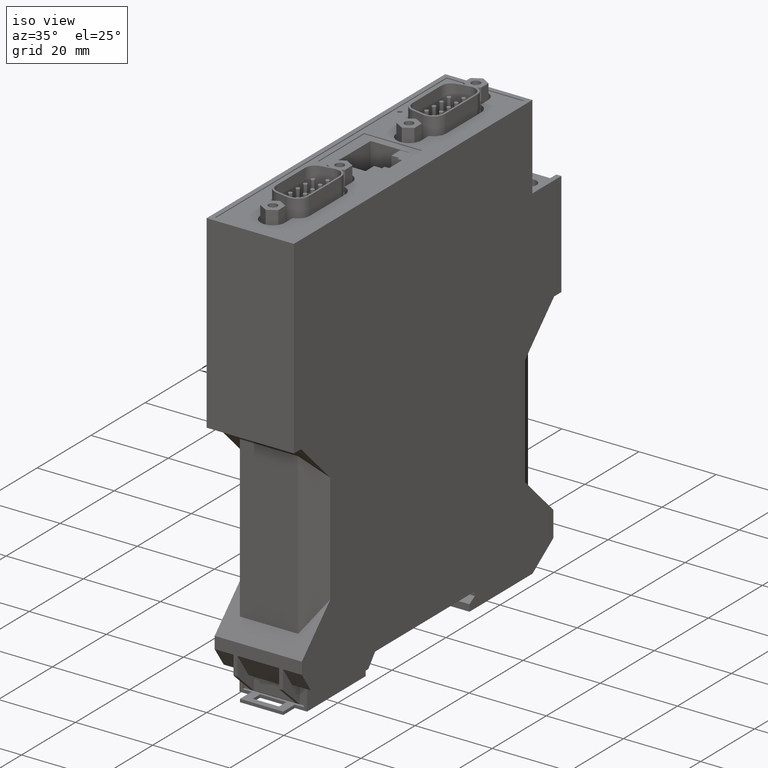
[diagram: clean part render]
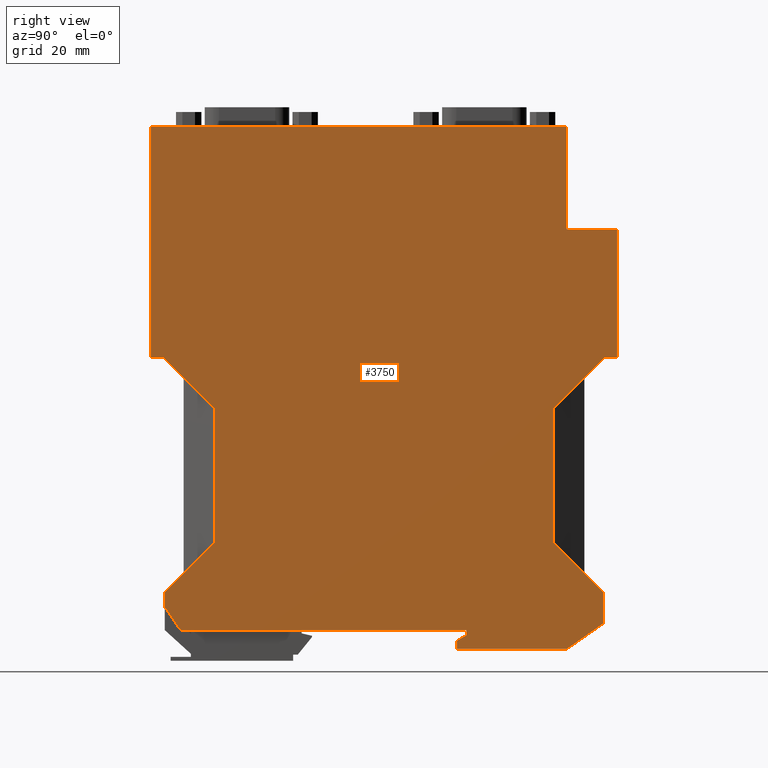
[diagram: tour spotlight — one face highlighted and labeled with its STEP entity id]
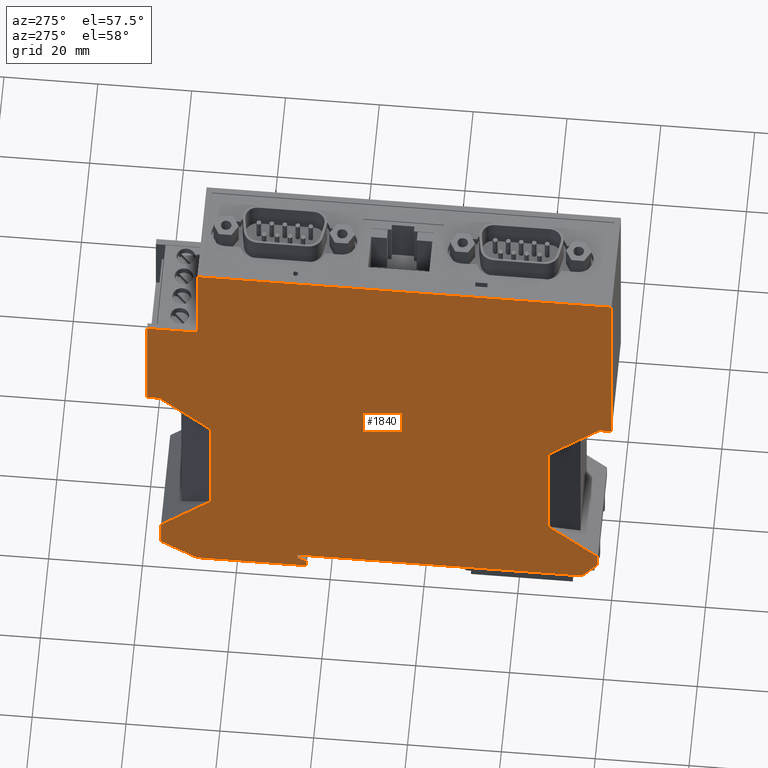
[diagram: tour spotlight — one face highlighted and labeled with its STEP entity id]
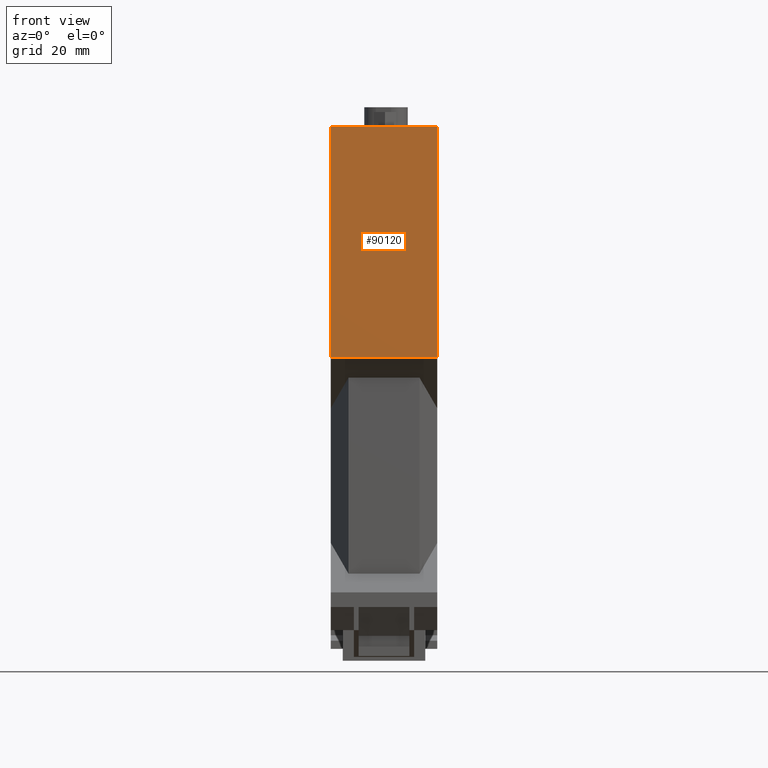
[diagram: tour spotlight — one face highlighted and labeled with its STEP entity id]
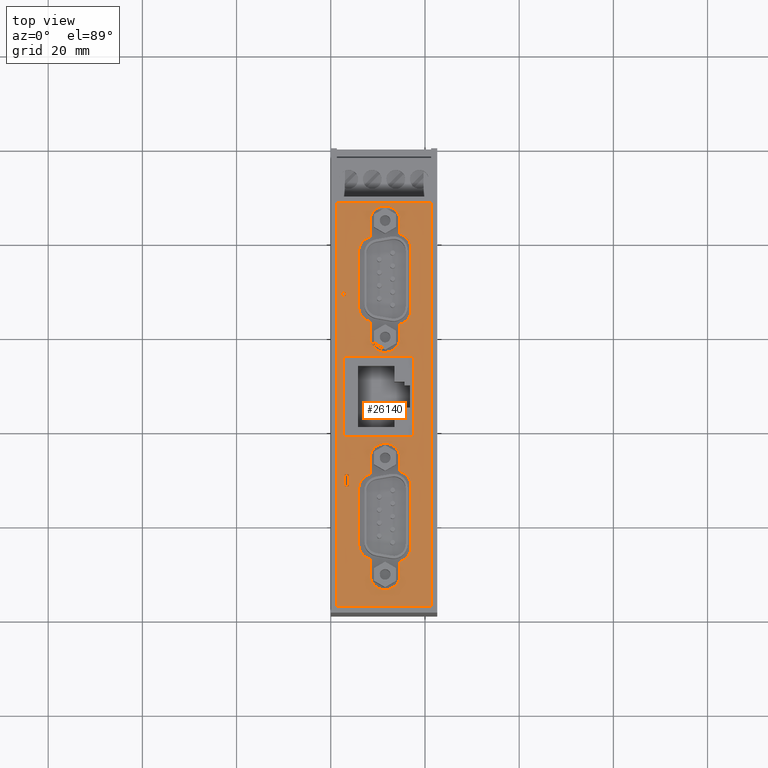
[diagram: tour spotlight — one face highlighted and labeled with its STEP entity id]
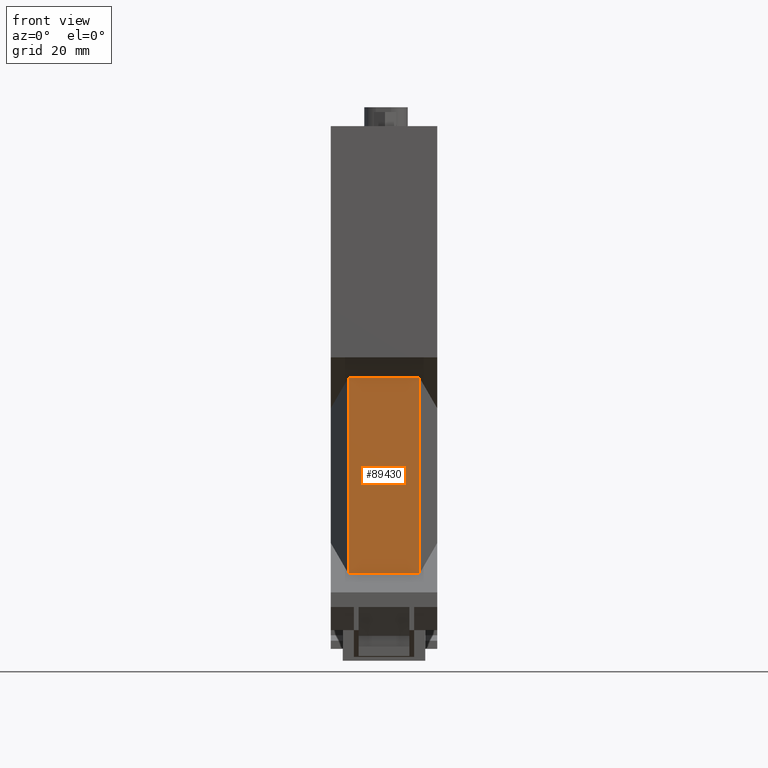
[diagram: tour spotlight — one face highlighted and labeled with its STEP entity id]
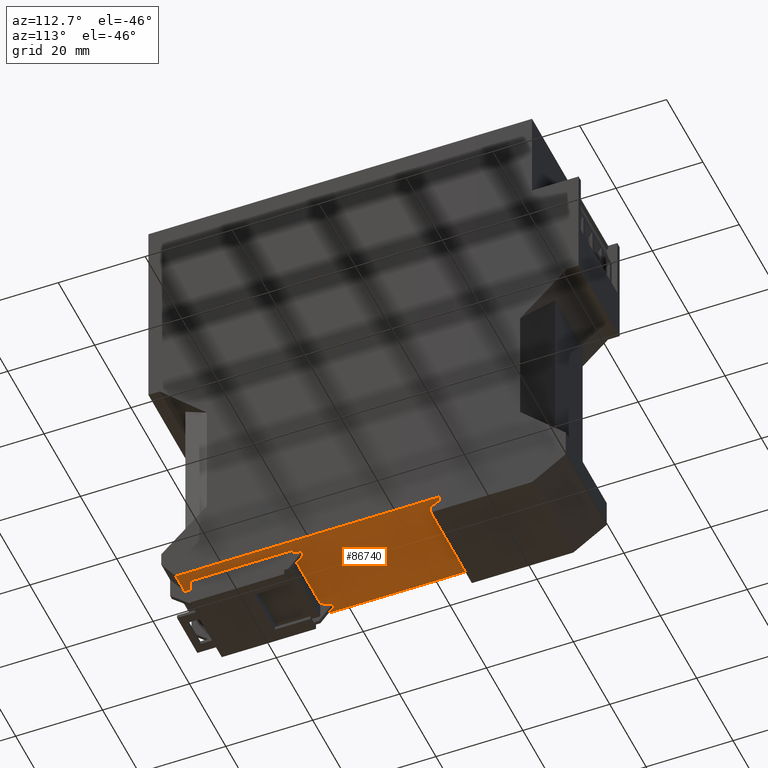
[diagram: tour spotlight — one face highlighted and labeled with its STEP entity id]
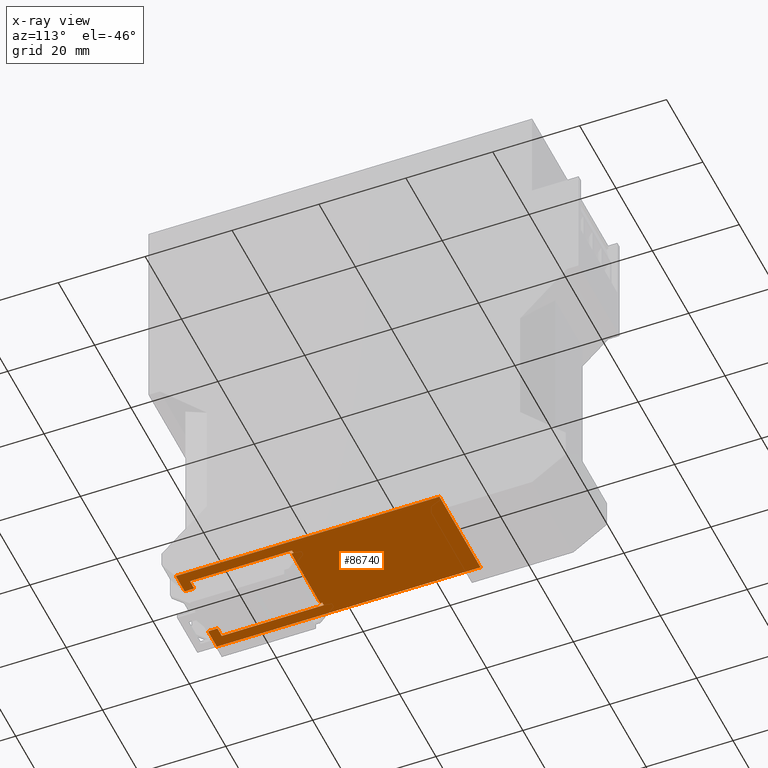
[diagram: x-ray of the same camera — body ghosted, this tour face saturated]
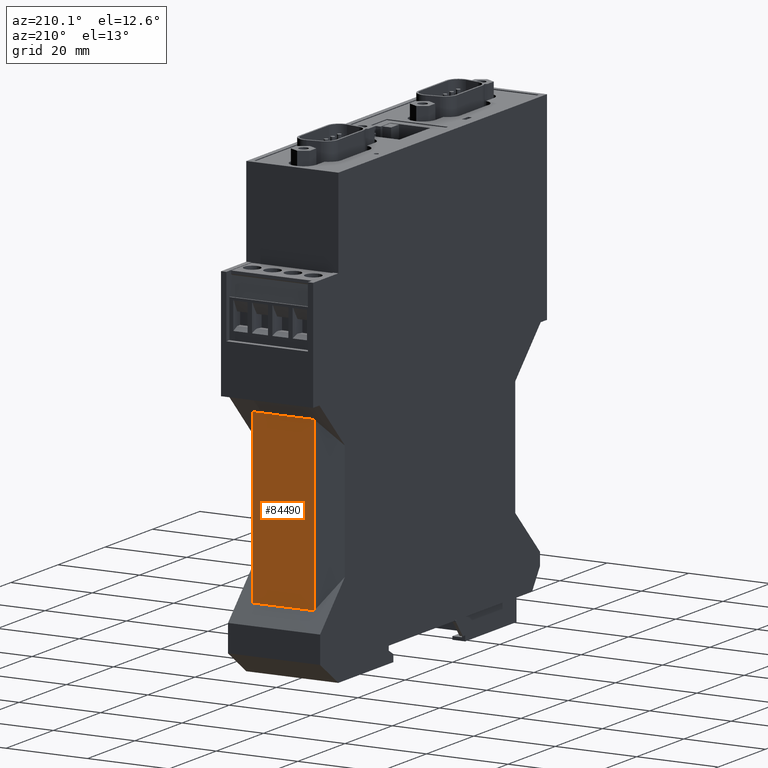
[diagram: tour spotlight — one face highlighted and labeled with its STEP entity id]
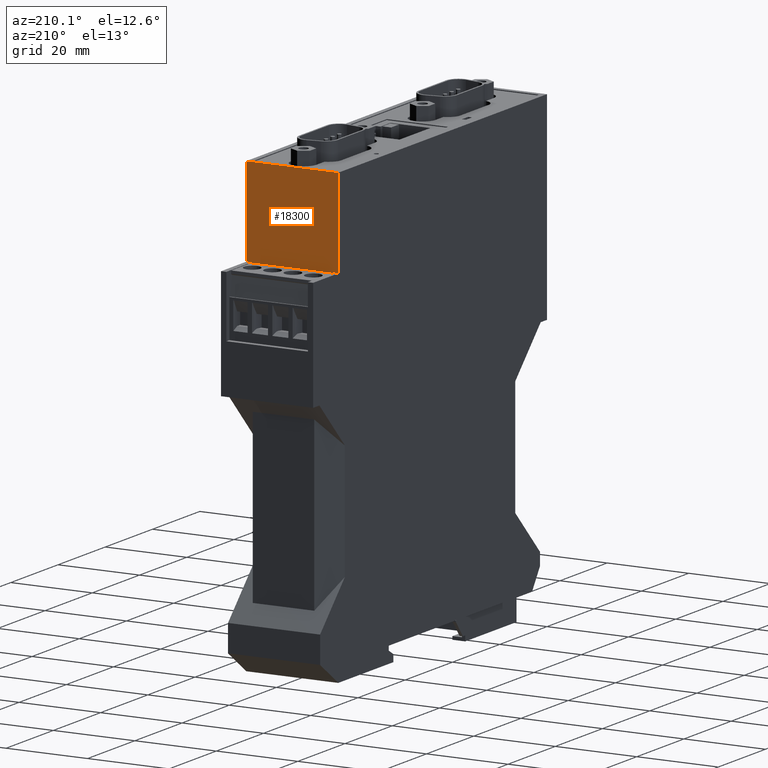
[diagram: tour spotlight — one face highlighted and labeled with its STEP entity id]
A machine part: a face-by-face anatomy tour. The part has 362 B-rep faces; the first image is the clean iso view, then the 8 largest visible faces are spotlighted one at a time (largest first), each with its STEP entity span.

Face 1 — right view, entity #3750. In plain terms, the highlighted planar face has unit normal (1, 0, 0).
Definition (entity closure, byte-faithful):
#1920=CARTESIAN_POINT('',(-57.4000000000029,25.7999999999959,22.6));
#1930=DIRECTION('',(0.,0.,1.));
#1940=DIRECTION('',(1.,0.,0.));
#1950=AXIS2_PLACEMENT_3D('',#1920,#1930,#1940);
#1960=PLANE('',#1950);
#1970=CARTESIAN_POINT('',(-77.1081632652817,24.,22.6));
#1980=DIRECTION('',(-0.564381899303651,0.825513822863314,0.));
#1990=VECTOR('',#1980,1.);
#2000=LINE('',#1970,#1990);
#2010=CARTESIAN_POINT('',(-60.7000000000009,5.04485342389671E-13,22.6));
#2020=VERTEX_POINT('',#2010);
#2030=CARTESIAN_POINT('',(-64.0500000000063,4.90000000001588,22.6));
#2040=VERTEX_POINT('',#2030);
#2050=EDGE_CURVE('',#2020,#2040,#2000,.T.);
#2060=ORIENTED_EDGE('',*,*,#2050,.F.);
#2070=CARTESIAN_POINT('',(-64.0500000000063,24.,22.6));
#2080=DIRECTION('',(0.,1.,0.));
#2090=VECTOR('',#2080,1.);
#2100=LINE('',#2070,#2090);
#2110=CARTESIAN_POINT('',(-64.0500000000063,7.99999999999596,22.6));
#2120=VERTEX_POINT('',#2110);
#2130=EDGE_CURVE('',#2040,#2120,#2100,.T.);
#2140=ORIENTED_EDGE('',*,*,#2130,.F.);
#2150=CARTESIAN_POINT('',(24.,96.049999999986,22.6));
#2160=DIRECTION('',(0.707106781186613,0.707106781186482,0.));
#2170=VECTOR('',#2160,1.);
#2180=LINE('',#2150,#2170);
#2190=CARTESIAN_POINT('',(-53.5500000000014,18.4999999999989,22.6));
#2200=VERTEX_POINT('',#2190);
#2210=EDGE_CURVE('',#2120,#2200,#2180,.T.);
#2220=ORIENTED_EDGE('',*,*,#2210,.F.);
#2230=CARTESIAN_POINT('',(-53.5500000000014,24.,22.6));
#2240=DIRECTION('',(0.,-1.,0.));
#2250=VECTOR('',#2240,1.);
#2260=LINE('',#2230,#2250);
#2270=CARTESIAN_POINT('',(-53.5500000000014,47.1000000000007,22.6));
#2280=VERTEX_POINT('',#2270);
#2290=EDGE_CURVE('',#2280,#2200,#2260,.T.);
#2300=ORIENTED_EDGE('',*,*,#2290,.T.);
#2310=CARTESIAN_POINT('',(24.,-30.45,22.6));
#2320=DIRECTION('',(-0.707106781186551,0.707106781186544,0.));
#2330=VECTOR('',#2320,1.);
#2340=LINE('',#2310,#2330);
#2350=CARTESIAN_POINT('',(-64.3500000000018,57.900000000001,22.6));
#2360=VERTEX_POINT('',#2350);
#2370=EDGE_CURVE('',#2280,#2360,#2340,.T.);
#2380=ORIENTED_EDGE('',*,*,#2370,.F.);
#2390=CARTESIAN_POINT('',(24.,57.8999999999923,22.6));
#2400=DIRECTION('',(-1.,9.89E-14,0.));
#2410=VECTOR('',#2400,1.);
#2420=LINE('',#2390,#2410);
#2430=CARTESIAN_POINT('',(-66.9999999999093,57.9000000000013,22.6));
#2440=VERTEX_POINT('',#2430);
#2450=EDGE_CURVE('',#2360,#2440,#2420,.T.);
#2460=ORIENTED_EDGE('',*,*,#2450,.F.);
#2470=CARTESIAN_POINT('',(-66.9999999999093,24.,22.6));
#2480=DIRECTION('',(0.,1.,0.));
#2490=VECTOR('',#2480,1.);
#2500=LINE('',#2470,#2490);
#2510=CARTESIAN_POINT('',(-66.9999999999093,107.000000000009,22.6));
#2520=VERTEX_POINT('',#2510);
#2530=EDGE_CURVE('',#2440,#2520,#2500,.T.);
#2540=ORIENTED_EDGE('',*,*,#2530,.F.);
#2550=CARTESIAN_POINT('',(24.,106.999999999941,22.6));
#2560=DIRECTION('',(-1.,7.38964445188328E-13,0.));
#2570=VECTOR('',#2560,1.);
#2580=LINE('',#2550,#2570);
#2590=CARTESIAN_POINT('',(21.2999999999832,106.999999999943,22.6));
#2600=VERTEX_POINT('',#2590);
#2610=EDGE_CURVE('',#2600,#2520,#2580,.T.);
#2620=ORIENTED_EDGE('',*,*,#2610,.T.);
#2630=CARTESIAN_POINT('',(21.3000000000036,24.,22.6));
#2640=DIRECTION('',(2.17588503380295E-24,-1.,-0.));
#2650=VECTOR('',#2640,1.);
#2660=LINE('',#2630,#2650);
#2670=CARTESIAN_POINT('',(21.2999999999832,85.1000000000079,22.6));
#2680=VERTEX_POINT('',#2670);
#2690=EDGE_CURVE('',#2600,#2680,#2660,.T.);
#2700=ORIENTED_EDGE('',*,*,#2690,.F.);
#2710=CARTESIAN_POINT('',(24.,85.1000000000079,22.6));
#2720=DIRECTION('',(-1.,-2.17588503379895E-24,0.));
#2730=VECTOR('',#2720,1.);
#2740=LINE('',#2710,#2730);
#2750=CARTESIAN_POINT('',(31.9999999999779,85.1000000000079,22.6));
#2760=VERTEX_POINT('',#2750);
#2770=EDGE_CURVE('',#2760,#2680,#2740,.T.);
#2780=ORIENTED_EDGE('',*,*,#2770,.T.);
#2790=CARTESIAN_POINT('',(32.0000000000223,24.,22.6));
#2800=DIRECTION('',(-7.27300000002176E-13,1.,0.));
#2810=VECTOR('',#2800,1.);
#2820=LINE('',#2790,#2810);
#2830=CARTESIAN_POINT('',(31.9999999999977,57.9000000000013,22.6));
#2840=VERTEX_POINT('',#2830);
#2850=EDGE_CURVE('',#2840,#2760,#2820,.T.);
#2860=ORIENTED_EDGE('',*,*,#2850,.T.);
#2870=CARTESIAN_POINT('',(24.,57.9000000000005,22.6));
#2880=DIRECTION('',(1.,9.89E-14,0.));
#2890=VECTOR('',#2880,1.);
#2900=LINE('',#2870,#2890);
#2910=CARTESIAN_POINT('',(29.3500000000902,57.900000000001,22.6));
#2920=VERTEX_POINT('',#2910);
#2930=EDGE_CURVE('',#2920,#2840,#2900,.T.);
#2940=ORIENTED_EDGE('',*,*,#2930,.T.);
#2950=CARTESIAN_POINT('',(24.,52.5499999999109,22.6));
#2960=DIRECTION('',(0.707106781186551,0.707106781186544,0.));
#2970=VECTOR('',#2960,1.);
#2980=LINE('',#2950,#2970);
#2990=CARTESIAN_POINT('',(18.5499999999986,47.0999999999095,22.6));
#3000=VERTEX_POINT('',#2990);
#3010=EDGE_CURVE('',#3000,#2920,#2980,.T.);
#3020=ORIENTED_EDGE('',*,*,#3010,.T.);
#3030=CARTESIAN_POINT('',(18.5499999999986,24.,22.6));
#3040=DIRECTION('',(0.,1.,0.));
#3050=VECTOR('',#3040,1.);
#3060=LINE('',#3030,#3050);
#3070=CARTESIAN_POINT('',(18.5499999999986,18.5000000000902,22.6));
#3080=VERTEX_POINT('',#3070);
#3090=EDGE_CURVE('',#3080,#3000,#3060,.T.);
#3100=ORIENTED_EDGE('',*,*,#3090,.T.);
#3110=CARTESIAN_POINT('',(24.,13.0500000000897,22.6));
#3120=DIRECTION('',(-0.707106781186613,0.707106781186482,0.));
#3130=VECTOR('',#3120,1.);
#3140=LINE('',#3110,#3130);
#3150=CARTESIAN_POINT('',(29.0500000000947,7.99999999999599,22.6));
#3160=VERTEX_POINT('',#3150);
#3170=EDGE_CURVE('',#3160,#3080,#3140,.T.);
#3180=ORIENTED_EDGE('',*,*,#3170,.T.);
#3190=CARTESIAN_POINT('',(29.0500000000947,24.,22.6));
#3200=DIRECTION('',(0.,1.,0.));
#3210=VECTOR('',#3200,1.);
#3220=LINE('',#3190,#3210);
#3230=CARTESIAN_POINT('',(29.0500000000947,1.40000000001705,22.6));
#3240=VERTEX_POINT('',#3230);
#3250=EDGE_CURVE('',#3240,#3160,#3220,.T.);
#3260=ORIENTED_EDGE('',*,*,#3250,.T.);
#3270=CARTESIAN_POINT('',(24.,-2.13604806800835,22.6));
#3280=DIRECTION('',(-0.819152044288986,-0.573576436351054,0.));
#3290=VECTOR('',#3280,1.);
#3300=LINE('',#3270,#3290);
#3310=CARTESIAN_POINT('',(21.338000763663,-4.00000000000013,22.6));
#3320=VERTEX_POINT('',#3310);
#3330=EDGE_CURVE('',#3240,#3320,#3300,.T.);
#3340=ORIENTED_EDGE('',*,*,#3330,.F.);
#3350=CARTESIAN_POINT('',(24.,-4.00000000000009,22.6));
#3360=DIRECTION('',(1.,4.80965890943096E-26,0.));
#3370=VECTOR('',#3360,1.);
#3380=LINE('',#3350,#3370);
#3390=CARTESIAN_POINT('',(-2.00000000000178,-4.00000000000013,22.6));
#3400=VERTEX_POINT('',#3390);
#3410=EDGE_CURVE('',#3400,#3320,#3380,.T.);
#3420=ORIENTED_EDGE('',*,*,#3410,.T.);
#3430=CARTESIAN_POINT('',(-2.00000000000178,24.,22.6));
#3440=DIRECTION('',(0.,1.,0.));
#3450=VECTOR('',#3440,1.);
#3460=LINE('',#3430,#3450);
#3470=CARTESIAN_POINT('',(-2.00000000000178,-2.25459663117339,22.6));
#3480=VERTEX_POINT('',#3470);
#3490=EDGE_CURVE('',#3400,#3480,#3460,.T.);
#3500=ORIENTED_EDGE('',*,*,#3490,.F.);
#3510=CARTESIAN_POINT('',(24.,12.7565103677565,22.6));
#3520=DIRECTION('',(-0.86602540378446,-0.499999999999964,0.));
#3530=VECTOR('',#3520,1.);
#3540=LINE('',#3510,#3530);
#3550=CARTESIAN_POINT('',(-1.76925141204265E-12,-1.09989609279425,22.6))
;
#3560=VERTEX_POINT('',#3550);
#3570=EDGE_CURVE('',#3560,#3480,#3540,.T.);
#3580=ORIENTED_EDGE('',*,*,#3570,.T.);
#3590=CARTESIAN_POINT('',(-1.77990955307905E-12,24.,22.6));
#3600=DIRECTION('',(4.E-16,-1.,-0.));
#3610=VECTOR('',#3600,1.);
#3620=LINE('',#3590,#3610);
#3630=CARTESIAN_POINT('',(-1.76925141204265E-12,-3.69482222595252E-13,
22.6));
#3640=VERTEX_POINT('',#3630);
#3650=EDGE_CURVE('',#3640,#3560,#3620,.T.);
#3660=ORIENTED_EDGE('',*,*,#3650,.T.);
#3670=CARTESIAN_POINT('',(24.,-7.14095449438901E-13,22.6));
#3680=DIRECTION('',(1.,-1.44E-14,-0.));
#3690=VECTOR('',#3680,1.);
#3700=LINE('',#3670,#3690);
#3710=EDGE_CURVE('',#2020,#3640,#3700,.T.);
#3720=ORIENTED_EDGE('',*,*,#3710,.T.);
#3730=EDGE_LOOP('',(#3720,#3660,#3580,#3500,#3420,#3340,#3260,#3180,
#3100,#3020,#2940,#2860,#2780,#2700,#2620,#2540,#2460,#2380,#2300,#2220,
#2140,#2060));
#3740=FACE_OUTER_BOUND('',#3730,.T.);
#3750=ADVANCED_FACE('',(#3740),#1960,.T.);

Face 2 — auxiliary view, entity #1840. In plain terms, the highlighted planar face has unit normal (-1, 0, 0).
Definition (entity closure, byte-faithful):
#10=CARTESIAN_POINT('',(24.,24.,0.));
#20=DIRECTION('',(0.,0.,-1.));
#30=DIRECTION('',(-1.,0.,0.));
#40=AXIS2_PLACEMENT_3D('',#10,#20,#30);
#50=PLANE('',#40);
#60=CARTESIAN_POINT('',(24.,-7.14095449438901E-13,0.));
#70=DIRECTION('',(1.,-1.44E-14,-0.));
#80=VECTOR('',#70,1.);
#90=LINE('',#60,#80);
#100=CARTESIAN_POINT('',(-60.7000000000028,5.04485342389671E-13,0.));
#110=VERTEX_POINT('',#100);
#120=CARTESIAN_POINT('',(-1.76925141204265E-12,-3.69482222595252E-13,0.)
);
#130=VERTEX_POINT('',#120);
#140=EDGE_CURVE('',#110,#130,#90,.T.);
#150=ORIENTED_EDGE('',*,*,#140,.F.);
#160=CARTESIAN_POINT('',(-1.76925141204265E-12,-3.69482222595252E-13,0.)
);
#170=DIRECTION('',(-3.23004482157597E-15,-1.,0.));
#180=VECTOR('',#170,1.);
#190=LINE('',#160,#180);
#200=CARTESIAN_POINT('',(-1.76925141204265E-12,-1.09989609279425,0.));
#210=VERTEX_POINT('',#200);
#220=EDGE_CURVE('',#130,#210,#190,.T.);
#230=ORIENTED_EDGE('',*,*,#220,.F.);
#240=CARTESIAN_POINT('',(-1.77280412572145E-12,-1.09989609279425,0.));
#250=DIRECTION('',(-0.86602540378446,-0.499999999999964,0.));
#260=VECTOR('',#250,1.);
#270=LINE('',#240,#260);
#280=CARTESIAN_POINT('',(-2.00000000000178,-2.25459663117339,0.));
#290=VERTEX_POINT('',#280);
#300=EDGE_CURVE('',#210,#290,#270,.T.);
#310=ORIENTED_EDGE('',*,*,#300,.F.);
#320=CARTESIAN_POINT('',(-2.00000000000288,24.,0.));
#330=DIRECTION('',(4.27899157140077E-14,-1.,-0.));
#340=VECTOR('',#330,1.);
#350=LINE('',#320,#340);
#360=CARTESIAN_POINT('',(-2.00000000000178,-4.00000000000004,0.));
#370=VERTEX_POINT('',#360);
#380=EDGE_CURVE('',#290,#370,#350,.T.);
#390=ORIENTED_EDGE('',*,*,#380,.F.);
#400=CARTESIAN_POINT('',(24.,-4.00000000000004,0.));
#410=DIRECTION('',(1.,4.80965890943096E-26,0.));
#420=VECTOR('',#410,1.);
#430=LINE('',#400,#420);
#440=CARTESIAN_POINT('',(21.3380007636733,-4.00000000000004,0.));
#450=VERTEX_POINT('',#440);
#460=EDGE_CURVE('',#370,#450,#430,.T.);
#470=ORIENTED_EDGE('',*,*,#460,.F.);
#480=CARTESIAN_POINT('',(24.,-2.13604806801552,0.));
#490=DIRECTION('',(0.819152044288986,0.573576436351054,0.));
#500=VECTOR('',#490,1.);
#510=LINE('',#480,#500);
#520=CARTESIAN_POINT('',(29.0500000000947,1.40000000001001,0.));
#530=VERTEX_POINT('',#520);
#540=EDGE_CURVE('',#450,#530,#510,.T.);
#550=ORIENTED_EDGE('',*,*,#540,.F.);
#560=CARTESIAN_POINT('',(29.0500000000947,1.40000000001025,0.));
#570=DIRECTION('',(2.15315980533829E-15,1.,0.));
#580=VECTOR('',#570,1.);
#590=LINE('',#560,#580);
#600=CARTESIAN_POINT('',(29.0500000000947,7.99999999999599,0.));
#610=VERTEX_POINT('',#600);
#620=EDGE_CURVE('',#530,#610,#590,.T.);
#630=ORIENTED_EDGE('',*,*,#620,.F.);
#640=CARTESIAN_POINT('',(24.,13.0500000000897,0.));
#650=DIRECTION('',(-0.707106781186613,0.707106781186482,0.));
#660=VECTOR('',#650,1.);
#670=LINE('',#640,#660);
#680=CARTESIAN_POINT('',(18.55000000009,18.4999999999987,0.));
#690=VERTEX_POINT('',#680);
#700=EDGE_CURVE('',#610,#690,#670,.T.);
#710=ORIENTED_EDGE('',*,*,#700,.F.);
#720=CARTESIAN_POINT('',(18.5500000000901,24.,0.));
#730=DIRECTION('',(4.E-15,1.,0.));
#740=VECTOR('',#730,1.);
#750=LINE('',#720,#740);
#760=CARTESIAN_POINT('',(18.5500000000902,47.1000000000011,0.));
#770=VERTEX_POINT('',#760);
#780=EDGE_CURVE('',#690,#770,#750,.T.);
#790=ORIENTED_EDGE('',*,*,#780,.F.);
#800=CARTESIAN_POINT('',(24.,52.5499999999109,0.));
#810=DIRECTION('',(0.707106781186551,0.707106781186544,0.));
#820=VECTOR('',#810,1.);
#830=LINE('',#800,#820);
#840=CARTESIAN_POINT('',(29.3500000000902,57.900000000001,0.));
#850=VERTEX_POINT('',#840);
#860=EDGE_CURVE('',#770,#850,#830,.T.);
#870=ORIENTED_EDGE('',*,*,#860,.F.);
#880=CARTESIAN_POINT('',(24.,57.9000000000005,0.));
#890=DIRECTION('',(1.,9.89E-14,0.));
#900=VECTOR('',#890,1.);
#910=LINE('',#880,#900);
#920=CARTESIAN_POINT('',(32.0000000000386,57.9000000000013,0.));
#930=VERTEX_POINT('',#920);
#940=EDGE_CURVE('',#850,#930,#910,.T.);
#950=ORIENTED_EDGE('',*,*,#940,.F.);
#960=CARTESIAN_POINT('',(32.0000000000633,24.,0.));
#970=DIRECTION('',(7.27300000002176E-13,-1.,-0.));
#980=VECTOR('',#970,1.);
#990=LINE('',#960,#980);
#1000=CARTESIAN_POINT('',(32.0000000000188,85.1000000000079,0.));
#1010=VERTEX_POINT('',#1000);
#1020=EDGE_CURVE('',#1010,#930,#990,.T.);
#1030=ORIENTED_EDGE('',*,*,#1020,.T.);
#1040=CARTESIAN_POINT('',(24.,85.1000000000079,0.));
#1050=DIRECTION('',(-1.,-2.17588503379895E-24,0.));
#1060=VECTOR('',#1050,1.);
#1070=LINE('',#1040,#1060);
#1080=CARTESIAN_POINT('',(21.3000000000241,85.1000000000079,0.));
#1090=VERTEX_POINT('',#1080);
#1100=EDGE_CURVE('',#1010,#1090,#1070,.T.);
#1110=ORIENTED_EDGE('',*,*,#1100,.F.);
#1120=CARTESIAN_POINT('',(21.3000000000241,24.,0.));
#1130=DIRECTION('',(-2.17588503380295E-24,1.,0.));
#1140=VECTOR('',#1130,1.);
#1150=LINE('',#1120,#1140);
#1160=CARTESIAN_POINT('',(21.3000000000241,106.999999999943,0.));
#1170=VERTEX_POINT('',#1160);
#1180=EDGE_CURVE('',#1090,#1170,#1150,.T.);
#1190=ORIENTED_EDGE('',*,*,#1180,.F.);
#1200=CARTESIAN_POINT('',(24.,106.999999999941,0.));
#1210=DIRECTION('',(-1.,7.38964445188328E-13,0.));
#1220=VECTOR('',#1210,1.);
#1230=LINE('',#1200,#1220);
#1240=CARTESIAN_POINT('',(-66.9999999999093,107.000000000009,0.));
#1250=VERTEX_POINT('',#1240);
#1260=EDGE_CURVE('',#1170,#1250,#1230,.T.);
#1270=ORIENTED_EDGE('',*,*,#1260,.F.);
#1280=CARTESIAN_POINT('',(-66.9999999999093,24.,0.));
#1290=DIRECTION('',(0.,1.,0.));
#1300=VECTOR('',#1290,1.);
#1310=LINE('',#1280,#1300);
#1320=CARTESIAN_POINT('',(-66.9999999999093,57.9000000000013,0.));
#1330=VERTEX_POINT('',#1320);
#1340=EDGE_CURVE('',#1330,#1250,#1310,.T.);
#1350=ORIENTED_EDGE('',*,*,#1340,.T.);
#1360=CARTESIAN_POINT('',(24.,57.8999999999923,0.));
#1370=DIRECTION('',(-1.,9.89E-14,0.));
#1380=VECTOR('',#1370,1.);
#1390=LINE('',#1360,#1380);
#1400=CARTESIAN_POINT('',(-64.3500000000018,57.900000000001,0.));
#1410=VERTEX_POINT('',#1400);
#1420=EDGE_CURVE('',#1410,#1330,#1390,.T.);
#1430=ORIENTED_EDGE('',*,*,#1420,.T.);
#1440=CARTESIAN_POINT('',(24.,-30.45,0.));
#1450=DIRECTION('',(0.707106781186551,-0.707106781186544,-0.));
#1460=VECTOR('',#1450,1.);
#1470=LINE('',#1440,#1460);
#1480=CARTESIAN_POINT('',(-53.5500000000017,47.1000000000011,0.));
#1490=VERTEX_POINT('',#1480);
#1500=EDGE_CURVE('',#1410,#1490,#1470,.T.);
#1510=ORIENTED_EDGE('',*,*,#1500,.F.);
#1520=CARTESIAN_POINT('',(-53.5500000000017,24.,0.));
#1530=DIRECTION('',(0.,1.,0.));
#1540=VECTOR('',#1530,1.);
#1550=LINE('',#1520,#1540);
#1560=CARTESIAN_POINT('',(-53.5500000000018,18.4999999999986,0.));
#1570=VERTEX_POINT('',#1560);
#1580=EDGE_CURVE('',#1570,#1490,#1550,.T.);
#1590=ORIENTED_EDGE('',*,*,#1580,.T.);
#1600=CARTESIAN_POINT('',(24.,96.049999999986,0.));
#1610=DIRECTION('',(-0.707106781186613,-0.707106781186482,0.));
#1620=VECTOR('',#1610,1.);
#1630=LINE('',#1600,#1620);
#1640=CARTESIAN_POINT('',(-64.0500000000063,7.99999999999596,0.));
#1650=VERTEX_POINT('',#1640);
#1660=EDGE_CURVE('',#1570,#1650,#1630,.T.);
#1670=ORIENTED_EDGE('',*,*,#1660,.F.);
#1680=CARTESIAN_POINT('',(-64.0500000000063,24.,0.));
#1690=DIRECTION('',(0.,-1.,0.));
#1700=VECTOR('',#1690,1.);
#1710=LINE('',#1680,#1700);
#1720=CARTESIAN_POINT('',(-64.0500000000063,4.90000000001316,0.));
#1730=VERTEX_POINT('',#1720);
#1740=EDGE_CURVE('',#1650,#1730,#1710,.T.);
#1750=ORIENTED_EDGE('',*,*,#1740,.F.);
#1760=CARTESIAN_POINT('',(-77.1081632652836,24.,0.));
#1770=DIRECTION('',(0.564381899303651,-0.825513822863314,-0.));
#1780=VECTOR('',#1770,1.);
#1790=LINE('',#1760,#1780);
#1800=EDGE_CURVE('',#1730,#110,#1790,.T.);
#1810=ORIENTED_EDGE('',*,*,#1800,.F.);
#1820=EDGE_LOOP('',(#1810,#1750,#1670,#1590,#1510,#1430,#1350,#1270,
#1190,#1110,#1030,#950,#870,#790,#710,#630,#550,#470,#390,#310,#230,#150
));
#1830=FACE_OUTER_BOUND('',#1820,.T.);
#1840=ADVANCED_FACE('',(#1830),#50,.T.);

Face 3 — front view, entity #90120. In plain terms, the highlighted planar face has unit normal (0, -1, 0).
Definition (entity closure, byte-faithful):
#1240=CARTESIAN_POINT('',(-66.9999999999093,107.000000000009,0.));
#1250=VERTEX_POINT('',#1240);
#1280=CARTESIAN_POINT('',(-66.9999999999093,24.,0.));
#1290=DIRECTION('',(0.,1.,0.));
#1300=VECTOR('',#1290,1.);
#1310=LINE('',#1280,#1300);
#1320=CARTESIAN_POINT('',(-66.9999999999093,57.9000000000013,0.));
#1330=VERTEX_POINT('',#1320);
#1340=EDGE_CURVE('',#1330,#1250,#1310,.T.);
#2430=CARTESIAN_POINT('',(-66.9999999999093,57.9000000000013,22.6));
#2440=VERTEX_POINT('',#2430);
#2470=CARTESIAN_POINT('',(-66.9999999999093,24.,22.6));
#2480=DIRECTION('',(0.,1.,0.));
#2490=VECTOR('',#2480,1.);
#2500=LINE('',#2470,#2490);
#2510=CARTESIAN_POINT('',(-66.9999999999093,107.000000000009,22.6));
#2520=VERTEX_POINT('',#2510);
#2530=EDGE_CURVE('',#2440,#2520,#2500,.T.);
#19170=CARTESIAN_POINT('',(-66.9999999999093,107.000000000009,0.));
#19180=DIRECTION('',(0.,-8.76330016597908E-25,-1.));
#19190=VECTOR('',#19180,1.);
#19200=LINE('',#19170,#19190);
#19210=EDGE_CURVE('',#2520,#1250,#19200,.T.);
#89830=CARTESIAN_POINT('',(-66.9999999999093,57.9000000000013,0.));
#89840=DIRECTION('',(0.,0.,1.));
#89850=VECTOR('',#89840,1.);
#89860=LINE('',#89830,#89850);
#89870=EDGE_CURVE('',#1330,#2440,#89860,.T.);
#90010=CARTESIAN_POINT('',(-66.9999999999093,-8.00000000000051,11.3));
#90020=DIRECTION('',(-1.,0.,0.));
#90030=DIRECTION('',(0.,1.,0.));
#90040=AXIS2_PLACEMENT_3D('',#90010,#90020,#90030);
#90050=PLANE('',#90040);
#90060=ORIENTED_EDGE('',*,*,#1340,.F.);
#90070=ORIENTED_EDGE('',*,*,#19210,.T.);
#90080=ORIENTED_EDGE('',*,*,#2530,.T.);
#90090=ORIENTED_EDGE('',*,*,#89870,.T.);
#90100=EDGE_LOOP('',(#90090,#90080,#90070,#90060));
#90110=FACE_OUTER_BOUND('',#90100,.T.);
#90120=ADVANCED_FACE('',(#90110),#90050,.T.);

Face 4 — top view, entity #26140. In plain terms, the highlighted planar face has unit normal (-0, 0, 1).
Definition (entity closure, byte-faithful):
#18470=CARTESIAN_POINT('',(-65.7499999999966,106.800000000008,
21.3499999999959));
#18480=VERTEX_POINT('',#18470);
#18530=CARTESIAN_POINT('',(24.,106.799999999941,21.3499999999959));
#18540=DIRECTION('',(-1.,7.38964445188328E-13,0.));
#18550=VECTOR('',#18540,1.);
#18560=LINE('',#18530,#18550);
#18570=CARTESIAN_POINT('',(20.0499999999852,106.799999999944,
21.3499999999959));
#18580=VERTEX_POINT('',#18570);
#18590=EDGE_CURVE('',#18580,#18480,#18560,.T.);
#19400=CARTESIAN_POINT('',(20.0499999999852,106.799999999944,0.));
#19410=DIRECTION('',(6.47623918906154E-37,8.76330016597908E-25,1.));
#19420=VECTOR('',#19410,1.);
#19430=LINE('',#19400,#19420);
#19440=CARTESIAN_POINT('',(20.0499999999852,106.799999999944,
1.25000000015117));
#19450=VERTEX_POINT('',#19440);
#19460=EDGE_CURVE('',#19450,#18580,#19430,.T.);
#19710=CARTESIAN_POINT('',(24.,106.799999999941,1.25000000015117));
#19720=DIRECTION('',(1.,-7.38964445188328E-13,-0.));
#19730=VECTOR('',#19720,1.);
#19740=LINE('',#19710,#19730);
#19750=CARTESIAN_POINT('',(-65.7499999999966,106.800000000008,
1.25000000015117));
#19760=VERTEX_POINT('',#19750);
#19770=EDGE_CURVE('',#19760,#19450,#19740,.T.);
#20020=CARTESIAN_POINT('',(-65.7499999999966,106.800000000008,0.));
#20030=DIRECTION('',(-6.47623918906154E-37,-8.76330016597908E-25,-1.));
#20040=VECTOR('',#20030,1.);
#20050=LINE('',#20020,#20040);
#20060=EDGE_CURVE('',#18480,#19760,#20050,.T.);
#20800=CARTESIAN_POINT('',(1.13199999998302,106.799999999999,
2.71180000001566));
#20810=VERTEX_POINT('',#20800);
#20970=CARTESIAN_POINT('',(0.0519999999830167,106.799999999971,
2.71180000001566));
#20980=VERTEX_POINT('',#20970);
#21010=CARTESIAN_POINT('',(0.591999999983017,106.8,2.71180000001566));
#21020=DIRECTION('',(7.38964445188328E-13,1.,-8.76330016597908E-25));
#21030=DIRECTION('',(-1.,7.38964445188328E-13,3.59138363842027E-39));
#21040=AXIS2_PLACEMENT_3D('',#21010,#21020,#21030);
#21050=CIRCLE('',#21040,0.54);
#21060=EDGE_CURVE('',#20810,#20980,#21050,.T.);
#23220=CARTESIAN_POINT('',(-6.94999999994276,106.799999999976,
9.10000000000001));
#23230=DIRECTION('',(7.38964445188328E-13,1.,-8.76330016597908E-25));
#23240=DIRECTION('',(1.,-7.38964445188328E-13,-0.));
#23250=AXIS2_PLACEMENT_3D('',#23220,#23230,#23240);
#23260=PLANE('',#23250);
#23270=EDGE_CURVE('',#20980,#20810,#21050,.T.);
#23280=ORIENTED_EDGE('',*,*,#23270,.F.);
#23290=ORIENTED_EDGE('',*,*,#21060,.F.);
#23300=EDGE_LOOP('',(#23290,#23280));
#23310=FACE_BOUND('',#23300,.T.);
#23320=CARTESIAN_POINT('',(28.9417518810975,106.799999999938,
8.3506000000365));
#23330=DIRECTION('',(1.,-7.38964445188328E-13,-0.));
#23340=VECTOR('',#23330,1.);
#23350=LINE('',#23320,#23340);
#23360=CARTESIAN_POINT('',(12.790088618989,106.799999999961,
8.3506000000365));
#23370=VERTEX_POINT('',#23360);
#23380=CARTESIAN_POINT('',(16.1737518811036,106.799999999959,
8.3506000000365));
#23390=VERTEX_POINT('',#23380);
#23400=EDGE_CURVE('',#23370,#23390,#23350,.T.);
#23410=ORIENTED_EDGE('',*,*,#23400,.T.);
#23420=CARTESIAN_POINT('',(9.70395180272197,106.799999999952,
9.09651189247518));
#23430=DIRECTION('',(7.38964445188328E-13,1.,-8.76330016597908E-25));
#23440=DIRECTION('',(-1.,7.38964445188328E-13,-2.39016997792508E-40));
#23450=AXIS2_PLACEMENT_3D('',#23420,#23430,#23440);
#23460=CIRCLE('',#23450,3.175);
#23470=CARTESIAN_POINT('',(9.19235799916622,106.799999999964,
5.96300000001915));
#23480=VERTEX_POINT('',#23470);
#23490=EDGE_CURVE('',#23370,#23480,#23460,.T.);
#23500=ORIENTED_EDGE('',*,*,#23490,.F.);
#23510=CARTESIAN_POINT('',(28.9417518810975,106.799999999938,
5.96300000001915));
#23520=DIRECTION('',(1.,-7.38964445188328E-13,-0.));
#23530=VECTOR('',#23520,1.);
#23540=LINE('',#23510,#23530);
#23550=CARTESIAN_POINT('',(-1.58445426617478,106.799999999972,
5.96300000001915));
#23560=VERTEX_POINT('',#23550);
#23570=EDGE_CURVE('',#23560,#23480,#23540,.T.);
#23580=ORIENTED_EDGE('',*,*,#23570,.T.);
#23590=CARTESIAN_POINT('',(-2.09604805066931,106.799999999961,
9.09651189558722));
#23600=DIRECTION('',(7.38964445188328E-13,1.,-8.76330016597908E-25));
#23610=DIRECTION('',(-1.,7.38964445188328E-13,-2.39016997792508E-40));
#23620=AXIS2_PLACEMENT_3D('',#23590,#23600,#23610);
#23630=CIRCLE('',#23620,3.175);
#23640=CARTESIAN_POINT('',(-5.18218486618412,106.799999999975,
8.35060000003649));
#23650=VERTEX_POINT('',#23640);
#23660=EDGE_CURVE('',#23560,#23650,#23630,.T.);
#23670=ORIENTED_EDGE('',*,*,#23660,.F.);
#23680=CARTESIAN_POINT('',(28.9417518810975,106.799999999938,
8.35060000003649));
#23690=DIRECTION('',(1.,-7.38964445188328E-13,-0.));
#23700=VECTOR('',#23690,1.);
#23710=LINE('',#23680,#23700);
#23720=CARTESIAN_POINT('',(-8.56584811889645,106.799999999977,
8.3506000000365));
#23730=VERTEX_POINT('',#23720);
#23740=EDGE_CURVE('',#23730,#23650,#23710,.T.);
#23750=ORIENTED_EDGE('',*,*,#23740,.T.);
#23760=CARTESIAN_POINT('',(-8.56584811889645,106.799999999965,
11.5256000000365));
#23770=DIRECTION('',(7.38964445188328E-13,1.,-8.76330016597908E-25));
#23780=DIRECTION('',(-4.66293670342565E-15,-8.72884272163913E-25,-1.));
#23790=AXIS2_PLACEMENT_3D('',#23760,#23770,#23780);
#23800=CIRCLE('',#23790,3.175);
#23810=CARTESIAN_POINT('',(-8.56584811889645,106.799999999977,
14.7006000000365));
#23820=VERTEX_POINT('',#23810);
#23830=EDGE_CURVE('',#23730,#23820,#23800,.T.);
#23840=ORIENTED_EDGE('',*,*,#23830,.F.);
#23850=CARTESIAN_POINT('',(28.9417518810975,106.799999999938,
14.7006000000365));
#23860=DIRECTION('',(-1.,7.38964445188328E-13,0.));
#23870=VECTOR('',#23860,1.);
#23880=LINE('',#23850,#23870);
#23890=CARTESIAN_POINT('',(-5.76007406284563,106.799999999975,
14.7006000000365));
#23900=VERTEX_POINT('',#23890);
#23910=EDGE_CURVE('',#23900,#23820,#23880,.T.);
#23920=ORIENTED_EDGE('',*,*,#23910,.T.);
#23930=CARTESIAN_POINT('',(-2.69604820968711,106.799999999961,
13.8685119210591));
#23940=DIRECTION('',(7.38964445188328E-13,1.,-8.76330016597908E-25));
#23950=DIRECTION('',(-1.,7.38964445188328E-13,-2.390169977918E-40));
#23960=AXIS2_PLACEMENT_3D('',#23930,#23940,#23950);
#23970=CIRCLE('',#23960,3.175);
#23980=CARTESIAN_POINT('',(-2.69604820968897,106.799999999973,
17.0435119210591));
#23990=VERTEX_POINT('',#23980);
#24000=EDGE_CURVE('',#23900,#23990,#23970,.T.);
#24010=ORIENTED_EDGE('',*,*,#24000,.F.);
#24020=CARTESIAN_POINT('',(28.9417518810975,106.799999999938,
17.0435119210591));
#24030=DIRECTION('',(-1.,7.38964445188328E-13,0.));
#24040=VECTOR('',#24030,1.);
#24050=LINE('',#24020,#24040);
#24060=CARTESIAN_POINT('',(10.3039519720795,106.799999999963,
17.0435119210591));
#24070=VERTEX_POINT('',#24060);
#24080=EDGE_CURVE('',#24070,#23990,#24050,.T.);
#24090=ORIENTED_EDGE('',*,*,#24080,.T.);
#24100=CARTESIAN_POINT('',(10.3039519720795,106.799999999952,
13.8685119210591));
#24110=DIRECTION('',(7.38964445188328E-13,1.,-8.76330016597908E-25));
#24120=DIRECTION('',(-1.,7.38964445188328E-13,-2.39016997793215E-40));
#24130=AXIS2_PLACEMENT_3D('',#24100,#24110,#24120);
#24140=CIRCLE('',#24130,3.175);
#24150=CARTESIAN_POINT('',(13.367977825238,106.799999999961,
14.7006000000365));
#24160=VERTEX_POINT('',#24150);
#24170=EDGE_CURVE('',#24070,#24160,#24140,.T.);
#24180=ORIENTED_EDGE('',*,*,#24170,.F.);
#24190=CARTESIAN_POINT('',(28.9417518810975,106.799999999938,
14.7006000000365));
#24200=DIRECTION('',(-1.,7.38964445188328E-13,0.));
#24210=VECTOR('',#24200,1.);
#24220=LINE('',#24190,#24210);
#24230=CARTESIAN_POINT('',(16.1737518811039,106.799999999959,
14.7006000000365));
#24240=VERTEX_POINT('',#24230);
#24250=EDGE_CURVE('',#24240,#24160,#24220,.T.);
#24260=ORIENTED_EDGE('',*,*,#24250,.T.);
#24270=CARTESIAN_POINT('',(16.1737518811036,106.799999999947,
11.5256000000365));
#24280=DIRECTION('',(7.38964445188328E-13,1.,-8.76330016597908E-25));
#24290=DIRECTION('',(7.105427357601E-15,8.71079358412773E-25,1.));
#24300=AXIS2_PLACEMENT_3D('',#24270,#24280,#24290);
#24310=CIRCLE('',#24300,3.175);
#24320=EDGE_CURVE('',#24240,#23390,#24310,.T.);
#24330=ORIENTED_EDGE('',*,*,#24320,.F.);
#24340=EDGE_LOOP('',(#24330,#24260,#24180,#24090,#24010,#23920,#23840,
#23750,#23670,#23580,#23500,#23410));
#24350=FACE_BOUND('',#24340,.T.);
#24360=ORIENTED_EDGE('',*,*,#19460,.F.);
#24370=ORIENTED_EDGE('',*,*,#18590,.F.);
#24380=ORIENTED_EDGE('',*,*,#20060,.F.);
#24390=ORIENTED_EDGE('',*,*,#19770,.F.);
#24400=EDGE_LOOP('',(#24390,#24380,#24370,#24360));
#24410=FACE_OUTER_BOUND('',#24400,.T.);
#24420=CARTESIAN_POINT('',(-82.9187143953075,106.799999999941,
17.6853999999536));
#24430=DIRECTION('',(-1.,-7.38964445188328E-13,0.));
#24440=VECTOR('',#24430,1.);
#24450=LINE('',#24420,#24440);
#24460=CARTESIAN_POINT('',(-12.5033143952905,106.799999999993,
17.6853999999536));
#24470=VERTEX_POINT('',#24460);
#24480=CARTESIAN_POINT('',(-29.7033143952905,106.799999999981,
17.6853999999536));
#24490=VERTEX_POINT('',#24480);
#24500=EDGE_CURVE('',#24470,#24490,#24450,.T.);
#24510=ORIENTED_EDGE('',*,*,#24500,.T.);
#24520=CARTESIAN_POINT('',(-12.5033143952905,106.799999999993,22.6));
#24530=DIRECTION('',(6.47623918906154E-37,-8.76330016597908E-25,1.));
#24540=VECTOR('',#24530,1.);
#24550=LINE('',#24520,#24540);
#24560=CARTESIAN_POINT('',(-12.5033143952905,106.799999999993,
2.68539999995361));
#24570=VERTEX_POINT('',#24560);
#24580=EDGE_CURVE('',#24570,#24470,#24550,.T.);
#24590=ORIENTED_EDGE('',*,*,#24580,.T.);
#24600=CARTESIAN_POINT('',(-82.9187143953075,106.799999999941,
2.68539999995361));
#24610=DIRECTION('',(1.,7.38964445188328E-13,0.));
#24620=VECTOR('',#24610,1.);
#24630=LINE('',#24600,#24620);
#24640=CARTESIAN_POINT('',(-29.7033143952905,106.799999999981,
2.68539999995361));
#24650=VERTEX_POINT('',#24640);
#24660=EDGE_CURVE('',#24650,#24570,#24630,.T.);
#24670=ORIENTED_EDGE('',*,*,#24660,.T.);
#24680=CARTESIAN_POINT('',(-29.7033143952905,106.799999999981,22.6));
#24690=DIRECTION('',(-6.47623918906154E-37,8.76330016597908E-25,-1.));
#24700=VECTOR('',#24690,1.);
#24710=LINE('',#24680,#24700);
#24720=EDGE_CURVE('',#24490,#24650,#24710,.T.);
#24730=ORIENTED_EDGE('',*,*,#24720,.T.);
#24740=EDGE_LOOP('',(#24730,#24670,#24590,#24510));
#24750=FACE_BOUND('',#24740,.T.);
#24760=CARTESIAN_POINT('',(-21.4582481189025,106.799999999938,
8.3506000000365));
#24770=DIRECTION('',(1.,-7.38964445188328E-13,-0.));
#24780=VECTOR('',#24770,1.);
#24790=LINE('',#24760,#24780);
#24800=CARTESIAN_POINT('',(-37.609911381011,106.799999999999,
8.3506000000365));
#24810=VERTEX_POINT('',#24800);
#24820=CARTESIAN_POINT('',(-34.2262481188964,106.799999999996,
8.3506000000365));
#24830=VERTEX_POINT('',#24820);
#24840=EDGE_CURVE('',#24810,#24830,#24790,.T.);
#24850=ORIENTED_EDGE('',*,*,#24840,.T.);
#24860=CARTESIAN_POINT('',(-40.696048197278,106.799999999952,
9.09651189247518));
#24870=DIRECTION('',(7.38964445188328E-13,1.,-8.76330016597908E-25));
#24880=DIRECTION('',(-1.,7.38964445188328E-13,-2.39016997792508E-40));
#24890=AXIS2_PLACEMENT_3D('',#24860,#24870,#24880);
#24900=CIRCLE('',#24890,3.175);
#24910=CARTESIAN_POINT('',(-41.2076420008338,106.800000000001,
5.96300000001915));
#24920=VERTEX_POINT('',#24910);
#24930=EDGE_CURVE('',#24810,#24920,#24900,.T.);
#24940=ORIENTED_EDGE('',*,*,#24930,.F.);
#24950=CARTESIAN_POINT('',(-21.4582481189025,106.799999999938,
5.96300000001915));
#24960=DIRECTION('',(1.,-7.38964445188328E-13,-0.));
#24970=VECTOR('',#24960,1.);
#24980=LINE('',#24950,#24970);
#24990=CARTESIAN_POINT('',(-51.9844542661748,106.800000000009,
5.96300000001915));
#25000=VERTEX_POINT('',#24990);
#25010=EDGE_CURVE('',#25000,#24920,#24980,.T.);
#25020=ORIENTED_EDGE('',*,*,#25010,.T.);
#25030=CARTESIAN_POINT('',(-52.4960480506693,106.799999999961,
9.09651189558722));
#25040=DIRECTION('',(7.38964445188328E-13,1.,-8.76330016597908E-25));
#25050=DIRECTION('',(-1.,7.38964445188328E-13,-2.39016997792508E-40));
#25060=AXIS2_PLACEMENT_3D('',#25030,#25040,#25050);
#25070=CIRCLE('',#25060,3.175);
#25080=CARTESIAN_POINT('',(-55.5821848661841,106.800000000012,
8.35060000003649));
#25090=VERTEX_POINT('',#25080);
#25100=EDGE_CURVE('',#25000,#25090,#25070,.T.);
#25110=ORIENTED_EDGE('',*,*,#25100,.F.);
#25120=CARTESIAN_POINT('',(-21.4582481189025,106.799999999938,
8.35060000003649));
#25130=DIRECTION('',(1.,-7.38964445188328E-13,-0.));
#25140=VECTOR('',#25130,1.);
#25150=LINE('',#25120,#25140);
#25160=CARTESIAN_POINT('',(-58.9658481188965,106.800000000014,
8.35060000003649));
#25170=VERTEX_POINT('',#25160);
#25180=EDGE_CURVE('',#25170,#25090,#25150,.T.);
#25190=ORIENTED_EDGE('',*,*,#25180,.T.);
#25200=CARTESIAN_POINT('',(-58.9658481188965,106.799999999965,
11.5256000000365));
#25210=DIRECTION('',(7.38964445188328E-13,1.,-8.76330016597908E-25));
#25220=DIRECTION('',(-4.66293670342565E-15,-8.72884272163913E-25,-1.));
#25230=AXIS2_PLACEMENT_3D('',#25200,#25210,#25220);
#25240=CIRCLE('',#25230,3.175);
#25250=CARTESIAN_POINT('',(-58.9658481188964,106.800000000014,
14.7006000000365));
#25260=VERTEX_POINT('',#25250);
#25270=EDGE_CURVE('',#25170,#25260,#25240,.T.);
#25280=ORIENTED_EDGE('',*,*,#25270,.F.);
#25290=CARTESIAN_POINT('',(-21.4582481189025,106.799999999938,
14.7006000000365));
#25300=DIRECTION('',(-1.,7.38964445188328E-13,0.));
#25310=VECTOR('',#25300,1.);
#25320=LINE('',#25290,#25310);
#25330=CARTESIAN_POINT('',(-56.1600740628456,106.800000000012,
14.7006000000365));
#25340=VERTEX_POINT('',#25330);
#25350=EDGE_CURVE('',#25340,#25260,#25320,.T.);
#25360=ORIENTED_EDGE('',*,*,#25350,.T.);
#25370=CARTESIAN_POINT('',(-53.0960482096871,106.799999999961,
13.8685119210591));
#25380=DIRECTION('',(7.38964445188328E-13,1.,-8.76330016597908E-25));
#25390=DIRECTION('',(-1.,7.38964445188328E-13,-2.390169977918E-40));
#25400=AXIS2_PLACEMENT_3D('',#25370,#25380,#25390);
#25410=CIRCLE('',#25400,3.175);
#25420=CARTESIAN_POINT('',(-53.096048209689,106.80000000001,
17.0435119210591));
#25430=VERTEX_POINT('',#25420);
#25440=EDGE_CURVE('',#25340,#25430,#25410,.T.);
#25450=ORIENTED_EDGE('',*,*,#25440,.F.);
#25460=CARTESIAN_POINT('',(-21.4582481189025,106.799999999938,
17.0435119210591));
#25470=DIRECTION('',(-1.,7.38964445188328E-13,0.));
#25480=VECTOR('',#25470,1.);
#25490=LINE('',#25460,#25480);
#25500=CARTESIAN_POINT('',(-40.0960480279205,106.800000000001,
17.0435119210591));
#25510=VERTEX_POINT('',#25500);
#25520=EDGE_CURVE('',#25510,#25430,#25490,.T.);
#25530=ORIENTED_EDGE('',*,*,#25520,.T.);
#25540=CARTESIAN_POINT('',(-40.0960480279205,106.799999999952,
13.8685119210591));
#25550=DIRECTION('',(7.38964445188328E-13,1.,-8.76330016597908E-25));
#25560=DIRECTION('',(-1.,7.38964445188328E-13,-2.39016997793215E-40));
#25570=AXIS2_PLACEMENT_3D('',#25540,#25550,#25560);
#25580=CIRCLE('',#25570,3.175);
#25590=CARTESIAN_POINT('',(-37.032022174762,106.799999999998,
14.7006000000365));
#25600=VERTEX_POINT('',#25590);
#25610=EDGE_CURVE('',#25510,#25600,#25580,.T.);
#25620=ORIENTED_EDGE('',*,*,#25610,.F.);
#25630=CARTESIAN_POINT('',(-21.4582481189025,106.799999999938,
14.7006000000365));
#25640=DIRECTION('',(-1.,7.38964445188328E-13,0.));
#25650=VECTOR('',#25640,1.);
#25660=LINE('',#25630,#25650);
#25670=CARTESIAN_POINT('',(-34.2262481188961,106.799999999996,
14.7006000000365));
#25680=VERTEX_POINT('',#25670);
#25690=EDGE_CURVE('',#25680,#25600,#25660,.T.);
#25700=ORIENTED_EDGE('',*,*,#25690,.T.);
#25710=CARTESIAN_POINT('',(-34.2262481188965,106.799999999947,
11.5256000000365));
#25720=DIRECTION('',(7.38964445188328E-13,1.,-8.76330016597908E-25));
#25730=DIRECTION('',(7.105427357601E-15,8.71079358412773E-25,1.));
#25740=AXIS2_PLACEMENT_3D('',#25710,#25720,#25730);
#25750=CIRCLE('',#25740,3.175);
#25760=EDGE_CURVE('',#25680,#24830,#25750,.T.);
#25770=ORIENTED_EDGE('',*,*,#25760,.F.);
#25780=EDGE_LOOP('',(#25770,#25700,#25620,#25530,#25450,#25360,#25280,
#25190,#25110,#25020,#24940,#24850));
#25790=FACE_BOUND('',#25780,.T.);
#25800=CARTESIAN_POINT('',(-40.2333999999013,106.800000000001,-2.2));
#25810=DIRECTION('',(-6.62562871323012E-18,-8.76325120071037E-25,-1.));
#25820=VECTOR('',#25810,1.);
#25830=LINE('',#25800,#25820);
#25840=CARTESIAN_POINT('',(-40.2333999999013,106.800000000001,
3.85660000001346));
#25850=VERTEX_POINT('',#25840);
#25860=CARTESIAN_POINT('',(-40.2333999999013,106.800000000001,
2.85660000001347));
#25870=VERTEX_POINT('',#25860);
#25880=EDGE_CURVE('',#25850,#25870,#25830,.T.);
#25890=ORIENTED_EDGE('',*,*,#25880,.T.);
#25900=CARTESIAN_POINT('',(39.9,106.799999999941,3.85660000001346));
#25910=DIRECTION('',(-1.,7.38964445188328E-13,6.62562860080833E-18));
#25920=VECTOR('',#25910,1.);
#25930=LINE('',#25900,#25920);
#25940=CARTESIAN_POINT('',(-37.6333999999013,106.799999999999,
3.85660000001346));
#25950=VERTEX_POINT('',#25940);
#25960=EDGE_CURVE('',#25950,#25850,#25930,.T.);
#25970=ORIENTED_EDGE('',*,*,#25960,.T.);
#25980=CARTESIAN_POINT('',(-37.6333999999013,106.799999999999,-2.2));
#25990=DIRECTION('',(6.62562871323012E-18,8.76325120071037E-25,1.));
#26000=VECTOR('',#25990,1.);
#26010=LINE('',#25980,#26000);
#26020=CARTESIAN_POINT('',(-37.6333999999013,106.799999999999,
2.85660000001347));
#26030=VERTEX_POINT('',#26020);
#26040=EDGE_CURVE('',#26030,#25950,#26010,.T.);
#26050=ORIENTED_EDGE('',*,*,#26040,.T.);
#26060=CARTESIAN_POINT('',(39.9,106.799999999941,2.85660000001347));
#26070=DIRECTION('',(1.,-7.38964445188328E-13,-6.62562860080833E-18));
#26080=VECTOR('',#26070,1.);
#26090=LINE('',#26060,#26080);
#26100=EDGE_CURVE('',#25870,#26030,#26090,.T.);
#26110=ORIENTED_EDGE('',*,*,#26100,.T.);
#26120=EDGE_LOOP('',(#26110,#26050,#25970,#25890));
#26130=FACE_BOUND('',#26120,.T.);
#26140=ADVANCED_FACE('',(#23310,#24350,#24410,#24750,#25790,#26130),
#23260,.T.);

Face 5 — front view, entity #89430. In plain terms, the highlighted planar face has unit normal (-0, -1, 0).
Definition (entity closure, byte-faithful):
#3920=CARTESIAN_POINT('',(-60.0500000000058,11.9999999999957,
18.8472232502649));
#3930=VERTEX_POINT('',#3920);
#3960=CARTESIAN_POINT('',(-60.0500000000057,24.,18.8472232502649));
#3970=DIRECTION('',(6.59999999999827E-15,1.,3.81051177665051E-15));
#3980=VECTOR('',#3970,1.);
#3990=LINE('',#3960,#3980);
#4000=CARTESIAN_POINT('',(-60.0500000000055,53.6000000000048,
18.8472232502651));
#4010=VERTEX_POINT('',#4000);
#4020=EDGE_CURVE('',#3930,#4010,#3990,.T.);
#4300=CARTESIAN_POINT('',(-60.0499999999987,53.599999999998,
3.75277674973081));
#4310=VERTEX_POINT('',#4300);
#4340=CARTESIAN_POINT('',(-60.0499999999989,24.,3.75277674973092));
#4350=DIRECTION('',(-6.60000000000173E-15,-1.,3.8105117766525E-15));
#4360=VECTOR('',#4350,1.);
#4370=LINE('',#4340,#4360);
#4380=CARTESIAN_POINT('',(-60.049999999999,12.0000000000026,
3.75277674973097));
#4390=VERTEX_POINT('',#4380);
#4400=EDGE_CURVE('',#4310,#4390,#4370,.T.);
#89080=CARTESIAN_POINT('',(-60.0499999999973,12.0000000000043,0.));
#89090=DIRECTION('',(4.52800000000003E-13,4.52799999999919E-13,-1.));
#89100=VECTOR('',#89090,1.);
#89110=LINE('',#89080,#89100);
#89120=EDGE_CURVE('',#3930,#4390,#89110,.T.);
#89270=CARTESIAN_POINT('',(-60.050000000002,68.5000000000004,
11.299999999981));
#89280=DIRECTION('',(-1.,6.6E-15,-4.528E-13));
#89290=DIRECTION('',(-4.528E-13,0.,1.));
#89300=AXIS2_PLACEMENT_3D('',#89270,#89280,#89290);
#89310=PLANE('',#89300);
#89320=ORIENTED_EDGE('',*,*,#4400,.T.);
#89330=CARTESIAN_POINT('',(-60.049999999997,53.5999999999963,0.));
#89340=DIRECTION('',(4.52799999999997E-13,-4.52799999999993E-13,-1.));
#89350=VECTOR('',#89340,1.);
#89360=LINE('',#89330,#89350);
#89370=EDGE_CURVE('',#4010,#4310,#89360,.T.);
#89380=ORIENTED_EDGE('',*,*,#89370,.T.);
#89390=ORIENTED_EDGE('',*,*,#4020,.T.);
#89400=ORIENTED_EDGE('',*,*,#89120,.F.);
#89410=EDGE_LOOP('',(#89400,#89390,#89380,#89320));
#89420=FACE_OUTER_BOUND('',#89410,.T.);
#89430=ADVANCED_FACE('',(#89420),#89310,.T.);

Face 6 — auxiliary view, entity #86740. An x-ray twin of the same camera follows (body ghosted, this face saturated) — the face is partly hidden behind the body. In plain terms, the highlighted planar face has unit normal (0, 0, 1).
Definition (entity closure, byte-faithful):
#60=CARTESIAN_POINT('',(24.,-7.14095449438901E-13,0.));
#70=DIRECTION('',(1.,-1.44E-14,-0.));
#80=VECTOR('',#70,1.);
#90=LINE('',#60,#80);
#100=CARTESIAN_POINT('',(-60.7000000000028,5.04485342389671E-13,0.));
#110=VERTEX_POINT('',#100);
#120=CARTESIAN_POINT('',(-1.76925141204265E-12,-3.69482222595252E-13,0.)
);
#130=VERTEX_POINT('',#120);
#140=EDGE_CURVE('',#110,#130,#90,.T.);
#2010=CARTESIAN_POINT('',(-60.7000000000009,5.04485342389671E-13,22.6));
#2020=VERTEX_POINT('',#2010);
#3630=CARTESIAN_POINT('',(-1.76925141204265E-12,-3.69482222595252E-13,
22.6));
#3640=VERTEX_POINT('',#3630);
#3670=CARTESIAN_POINT('',(24.,-7.14095449438901E-13,22.6));
#3680=DIRECTION('',(1.,-1.44E-14,-0.));
#3690=VECTOR('',#3680,1.);
#3700=LINE('',#3670,#3690);
#3710=EDGE_CURVE('',#2020,#3640,#3700,.T.);
#5530=CARTESIAN_POINT('',(-60.7000000000028,5.04485342389671E-13,4.9));
#5540=VERTEX_POINT('',#5530);
#5570=CARTESIAN_POINT('',(-60.7000000000028,5.04485342389671E-13,0.));
#5580=DIRECTION('',(0.,0.,1.));
#5590=VECTOR('',#5580,1.);
#5600=LINE('',#5570,#5590);
#5610=EDGE_CURVE('',#110,#5540,#5600,.T.);
#6250=CARTESIAN_POINT('',(24.,-7.14095449438901E-13,4.9));
#6260=DIRECTION('',(1.,-1.44E-14,-0.));
#6270=VECTOR('',#6260,1.);
#6280=LINE('',#6250,#6270);
#6290=CARTESIAN_POINT('',(-58.5000000000017,8.59756710269721E-13,4.9));
#6300=VERTEX_POINT('',#6290);
#6310=EDGE_CURVE('',#5540,#6300,#6280,.T.);
#9330=CARTESIAN_POINT('',(-58.5000000000017,4.72510919280467E-13,0.));
#9340=DIRECTION('',(0.,0.,-1.));
#9350=VECTOR('',#9340,1.);
#9360=LINE('',#9330,#9350);
#9370=CARTESIAN_POINT('',(-58.5000000000017,4.72510919280467E-13,
2.54999999999998));
#9380=VERTEX_POINT('',#9370);
#9390=EDGE_CURVE('',#6300,#9380,#9360,.T.);
#10770=CARTESIAN_POINT('',(-35.5000000000031,8.59756710269721E-13,
3.34999999999999));
#10780=VERTEX_POINT('',#10770);
#10810=CARTESIAN_POINT('',(24.,-7.14095449438901E-13,3.34999999999999));
#10820=DIRECTION('',(-1.,1.44E-14,0.));
#10830=VECTOR('',#10820,1.);
#10840=LINE('',#10810,#10830);
#10850=CARTESIAN_POINT('',(-35.0000000000018,1.35003119794419E-13,
3.34999999999999));
#10860=VERTEX_POINT('',#10850);
#10870=EDGE_CURVE('',#10860,#10780,#10840,.T.);
#11270=CARTESIAN_POINT('',(-35.0000000000018,1.35003119794419E-13,0.));
#11280=DIRECTION('',(0.,0.,-1.));
#11290=VECTOR('',#11280,1.);
#11300=LINE('',#11270,#11290);
#11310=CARTESIAN_POINT('',(-35.0000000000018,1.35003119794419E-13,
2.54999999999998));
#11320=VERTEX_POINT('',#11310);
#11330=EDGE_CURVE('',#10860,#11320,#11300,.T.);
#11750=CARTESIAN_POINT('',(24.,-7.14095449438901E-13,2.54999999999998));
#11760=DIRECTION('',(-1.,1.44E-14,0.));
#11770=VECTOR('',#11760,1.);
#11780=LINE('',#11750,#11770);
#11790=EDGE_CURVE('',#11320,#9380,#11780,.T.);
#14100=CARTESIAN_POINT('',(-58.5000000000017,8.59756710269721E-13,17.7))
;
#14110=VERTEX_POINT('',#14100);
#14140=CARTESIAN_POINT('',(-58.5000000000017,4.72510919280467E-13,0.));
#14150=DIRECTION('',(0.,0.,-1.));
#14160=VECTOR('',#14150,1.);
#14170=LINE('',#14140,#14160);
#14180=CARTESIAN_POINT('',(-58.5000000000017,4.72510919280467E-13,20.05)
);
#14190=VERTEX_POINT('',#14180);
#14200=EDGE_CURVE('',#14190,#14110,#14170,.T.);
#14680=CARTESIAN_POINT('',(24.,-7.14095449438901E-13,20.05));
#14690=DIRECTION('',(-1.,1.44E-14,0.));
#14700=VECTOR('',#14690,1.);
#14710=LINE('',#14680,#14700);
#14720=CARTESIAN_POINT('',(-35.0000000000018,1.35003119794419E-13,20.05)
);
#14730=VERTEX_POINT('',#14720);
#14740=EDGE_CURVE('',#14730,#14190,#14710,.T.);
#15760=CARTESIAN_POINT('',(-35.0000000000018,1.35003119794419E-13,0.));
#15770=DIRECTION('',(0.,0.,-1.));
#15780=VECTOR('',#15770,1.);
#15790=LINE('',#15760,#15780);
#15800=CARTESIAN_POINT('',(-35.0000000000018,1.35003119794419E-13,19.25)
);
#15810=VERTEX_POINT('',#15800);
#15820=EDGE_CURVE('',#14730,#15810,#15790,.T.);
#86090=CARTESIAN_POINT('',(-1.76925141204265E-12,-3.69482222595252E-13,
0.));
#86100=DIRECTION('',(0.,0.,1.));
#86110=VECTOR('',#86100,1.);
#86120=LINE('',#86090,#86110);
#86130=EDGE_CURVE('',#130,#3640,#86120,.T.);
#86270=CARTESIAN_POINT('',(-17.5000000000023,-1.17239551400417E-13,11.3)
);
#86280=DIRECTION('',(1.44E-14,1.,0.));
#86290=DIRECTION('',(1.,-1.44E-14,-0.));
#86300=AXIS2_PLACEMENT_3D('',#86270,#86280,#86290);
#86310=PLANE('',#86300);
#86320=ORIENTED_EDGE('',*,*,#140,.T.);
#86330=ORIENTED_EDGE('',*,*,#5610,.F.);
#86340=ORIENTED_EDGE('',*,*,#6310,.F.);
#86350=ORIENTED_EDGE('',*,*,#9390,.F.);
#86360=ORIENTED_EDGE('',*,*,#11790,.T.);
#86370=ORIENTED_EDGE('',*,*,#11330,.T.);
#86380=ORIENTED_EDGE('',*,*,#10870,.F.);
#86390=CARTESIAN_POINT('',(-35.5000000000031,1.4210854715202E-13,0.));
#86400=DIRECTION('',(0.,0.,1.));
#86410=VECTOR('',#86400,1.);
#86420=LINE('',#86390,#86410);
#86430=CARTESIAN_POINT('',(-35.5000000000031,8.59756710269721E-13,19.25)
);
#86440=VERTEX_POINT('',#86430);
#86450=EDGE_CURVE('',#10780,#86440,#86420,.T.);
#86460=ORIENTED_EDGE('',*,*,#86450,.F.);
#86470=CARTESIAN_POINT('',(24.,-7.14095449438901E-13,19.25));
#86480=DIRECTION('',(1.,-1.44E-14,-0.));
#86490=VECTOR('',#86480,1.);
#86500=LINE('',#86470,#86490);
#86510=EDGE_CURVE('',#86440,#15810,#86500,.T.);
#86520=ORIENTED_EDGE('',*,*,#86510,.F.);
#86530=ORIENTED_EDGE('',*,*,#15820,.T.);
#86540=ORIENTED_EDGE('',*,*,#14740,.F.);
#86550=ORIENTED_EDGE('',*,*,#14200,.F.);
#86560=CARTESIAN_POINT('',(24.,-7.14095449438901E-13,17.7));
#86570=DIRECTION('',(-1.,1.44E-14,0.));
#86580=VECTOR('',#86570,1.);
#86590=LINE('',#86560,#86580);
#86600=CARTESIAN_POINT('',(-60.7000000000009,5.04485342389671E-13,17.7))
;
#86610=VERTEX_POINT('',#86600);
#86620=EDGE_CURVE('',#14110,#86610,#86590,.T.);
#86630=ORIENTED_EDGE('',*,*,#86620,.F.);
#86640=CARTESIAN_POINT('',(-60.700000000001,6.46593889541691E-13,0.));
#86650=DIRECTION('',(0.,0.,1.));
#86660=VECTOR('',#86650,1.);
#86670=LINE('',#86640,#86660);
#86680=EDGE_CURVE('',#86610,#2020,#86670,.T.);
#86690=ORIENTED_EDGE('',*,*,#86680,.F.);
#86700=ORIENTED_EDGE('',*,*,#3710,.F.);
#86710=ORIENTED_EDGE('',*,*,#86130,.T.);
#86720=EDGE_LOOP('',(#86710,#86700,#86690,#86630,#86550,#86540,#86530,
#86520,#86460,#86380,#86370,#86360,#86350,#86340,#86330,#86320));
#86730=FACE_OUTER_BOUND('',#86720,.T.);
#86740=ADVANCED_FACE('',(#86730),#86310,.F.);

Face 7 — auxiliary view, entity #84490. In plain terms, the highlighted planar face has unit normal (0, -1, -0).
Definition (entity closure, byte-faithful):
#4680=CARTESIAN_POINT('',(25.0500000000874,12.0000000000026,
3.75277674973103));
#4690=VERTEX_POINT('',#4680);
#4720=CARTESIAN_POINT('',(25.0500000000873,24.,3.75277674973095));
#4730=DIRECTION('',(-6.60000000000277E-15,1.,-6.11991285341162E-15));
#4740=VECTOR('',#4730,1.);
#4750=LINE('',#4720,#4740);
#4760=CARTESIAN_POINT('',(25.0500000000871,53.599999999998,
3.75277674973077));
#4770=VERTEX_POINT('',#4760);
#4780=EDGE_CURVE('',#4690,#4770,#4750,.T.);
#5060=CARTESIAN_POINT('',(25.0500000000939,53.6000000000048,
18.8472232502124));
#5070=VERTEX_POINT('',#5060);
#5100=CARTESIAN_POINT('',(25.0500000000941,24.,18.8472232502123));
#5110=DIRECTION('',(-6.59999999999827E-15,1.,3.81051177665051E-15));
#5120=VECTOR('',#5110,1.);
#5130=LINE('',#5100,#5120);
#5140=CARTESIAN_POINT('',(25.0500000000942,11.9999999999957,
18.8472232502123));
#5150=VERTEX_POINT('',#5140);
#5160=EDGE_CURVE('',#5150,#5070,#5130,.T.);
#84140=CARTESIAN_POINT('',(25.0500000000854,53.5999999999963,0.));
#84150=DIRECTION('',(4.52799999999997E-13,4.52799999999993E-13,1.));
#84160=VECTOR('',#84150,1.);
#84170=LINE('',#84140,#84160);
#84180=EDGE_CURVE('',#4770,#5070,#84170,.T.);
#84330=CARTESIAN_POINT('',(25.0500000000904,68.5000000000004,
11.299999999981));
#84340=DIRECTION('',(-1.,-6.6E-15,4.528E-13));
#84350=DIRECTION('',(4.528E-13,0.,1.));
#84360=AXIS2_PLACEMENT_3D('',#84330,#84340,#84350);
#84370=PLANE('',#84360);
#84380=ORIENTED_EDGE('',*,*,#4780,.T.);
#84390=CARTESIAN_POINT('',(25.0500000000857,12.0000000000043,0.));
#84400=DIRECTION('',(-4.52800000000003E-13,4.52799999999919E-13,-1.));
#84410=VECTOR('',#84400,1.);
#84420=LINE('',#84390,#84410);
#84430=EDGE_CURVE('',#5150,#4690,#84420,.T.);
#84440=ORIENTED_EDGE('',*,*,#84430,.T.);
#84450=ORIENTED_EDGE('',*,*,#5160,.F.);
#84460=ORIENTED_EDGE('',*,*,#84180,.T.);
#84470=EDGE_LOOP('',(#84460,#84450,#84440,#84380));
#84480=FACE_OUTER_BOUND('',#84470,.T.);
#84490=ADVANCED_FACE('',(#84480),#84370,.F.);

Face 8 — auxiliary view, entity #18300. In plain terms, the highlighted planar face has unit normal (0, 1, 0).
Definition (entity closure, byte-faithful):
#1080=CARTESIAN_POINT('',(21.3000000000241,85.1000000000079,0.));
#1090=VERTEX_POINT('',#1080);
#1120=CARTESIAN_POINT('',(21.3000000000241,24.,0.));
#1130=DIRECTION('',(-2.17588503380295E-24,1.,0.));
#1140=VECTOR('',#1130,1.);
#1150=LINE('',#1120,#1140);
#1160=CARTESIAN_POINT('',(21.3000000000241,106.999999999943,0.));
#1170=VERTEX_POINT('',#1160);
#1180=EDGE_CURVE('',#1090,#1170,#1150,.T.);
#2590=CARTESIAN_POINT('',(21.2999999999832,106.999999999943,22.6));
#2600=VERTEX_POINT('',#2590);
#2630=CARTESIAN_POINT('',(21.3000000000036,24.,22.6));
#2640=DIRECTION('',(2.17588503380295E-24,-1.,-0.));
#2650=VECTOR('',#2640,1.);
#2660=LINE('',#2630,#2650);
#2670=CARTESIAN_POINT('',(21.2999999999832,85.1000000000079,22.6));
#2680=VERTEX_POINT('',#2670);
#2690=EDGE_CURVE('',#2600,#2680,#2660,.T.);
#17810=CARTESIAN_POINT('',(21.300000000011,99.421597788003,
7.24395756602027));
#17820=DIRECTION('',(1.,2.17588503380295E-24,1.81046150293795E-12));
#17830=DIRECTION('',(1.81046150293795E-12,0.,-1.));
#17840=AXIS2_PLACEMENT_3D('',#17810,#17820,#17830);
#17850=PLANE('',#17840);
#17860=ORIENTED_EDGE('',*,*,#1180,.T.);
#17870=CARTESIAN_POINT('',(21.3000000000241,85.1000000000079,0.));
#17880=DIRECTION('',(-1.81046150293795E-12,2.21416216699985E-24,1.));
#17890=VECTOR('',#17880,1.);
#17900=LINE('',#17870,#17890);
#17910=CARTESIAN_POINT('',(21.3000000000217,85.1000000000079,
1.30000000015381));
#17920=VERTEX_POINT('',#17910);
#17930=EDGE_CURVE('',#1090,#17920,#17900,.T.);
#17940=ORIENTED_EDGE('',*,*,#17930,.F.);
#17950=CARTESIAN_POINT('',(21.3000000000217,24.,1.30000000015381));
#17960=DIRECTION('',(2.17588503379894E-24,-1.,2.21419669665522E-24));
#17970=VECTOR('',#17960,1.);
#17980=LINE('',#17950,#17970);
#17990=CARTESIAN_POINT('',(21.3000000000217,85.0000000000079,
1.30000000015381));
#18000=VERTEX_POINT('',#17990);
#18010=EDGE_CURVE('',#17920,#18000,#17980,.T.);
#18020=ORIENTED_EDGE('',*,*,#18010,.F.);
#18030=CARTESIAN_POINT('',(21.3000000000241,85.0000000000079,0.));
#18040=DIRECTION('',(1.81046150293795E-12,0.,-1.));
#18050=VECTOR('',#18040,1.);
#18060=LINE('',#18030,#18050);
#18070=CARTESIAN_POINT('',(21.2999999999855,85.0000000000079,
21.3000000001629));
#18080=VERTEX_POINT('',#18070);
#18090=EDGE_CURVE('',#18080,#18000,#18060,.T.);
#18100=ORIENTED_EDGE('',*,*,#18090,.T.);
#18110=CARTESIAN_POINT('',(21.2999999999855,24.,21.3000000001629));
#18120=DIRECTION('',(-2.17588503379894E-24,1.,-2.21419669665522E-24));
#18130=VECTOR('',#18120,1.);
#18140=LINE('',#18110,#18130);
#18150=CARTESIAN_POINT('',(21.2999999999855,85.1000000000079,
21.3000000001629));
#18160=VERTEX_POINT('',#18150);
#18170=EDGE_CURVE('',#18080,#18160,#18140,.T.);
#18180=ORIENTED_EDGE('',*,*,#18170,.F.);
#18190=EDGE_CURVE('',#18160,#2680,#17900,.T.);
#18200=ORIENTED_EDGE('',*,*,#18190,.F.);
#18210=ORIENTED_EDGE('',*,*,#2690,.T.);
#18220=CARTESIAN_POINT('',(21.3000000000241,106.999999999943,0.));
#18230=DIRECTION('',(-1.81046150293795E-12,2.21416216699985E-24,1.));
#18240=VECTOR('',#18230,1.);
#18250=LINE('',#18220,#18240);
#18260=EDGE_CURVE('',#1170,#2600,#18250,.T.);
#18270=ORIENTED_EDGE('',*,*,#18260,.T.);
#18280=EDGE_LOOP('',(#18270,#18210,#18200,#18180,#18100,#18020,#17940,
#17860));
#18290=FACE_OUTER_BOUND('',#18280,.T.);
#18300=ADVANCED_FACE('',(#18290),#17850,.T.);